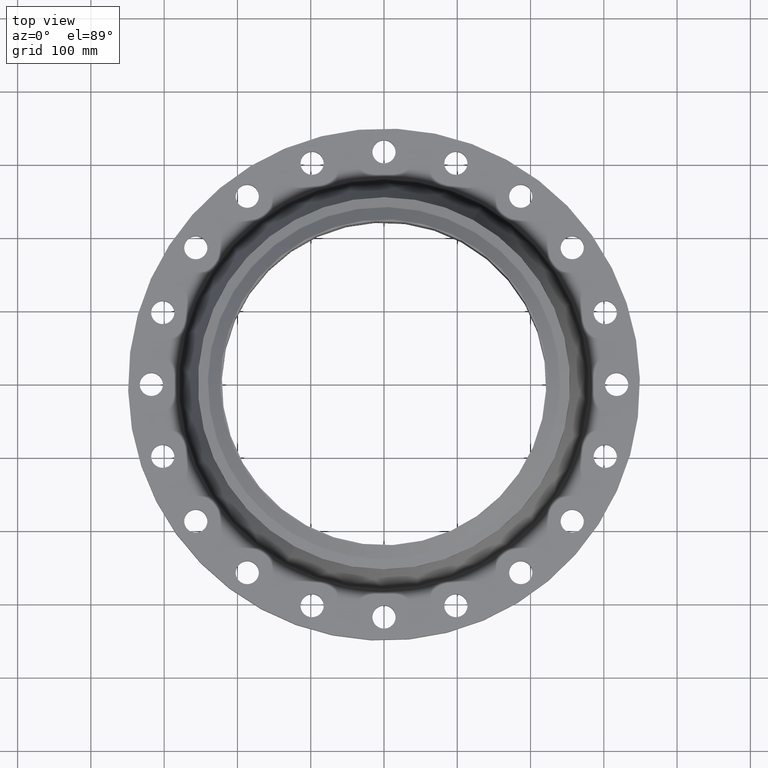
[diagram: clean part render]
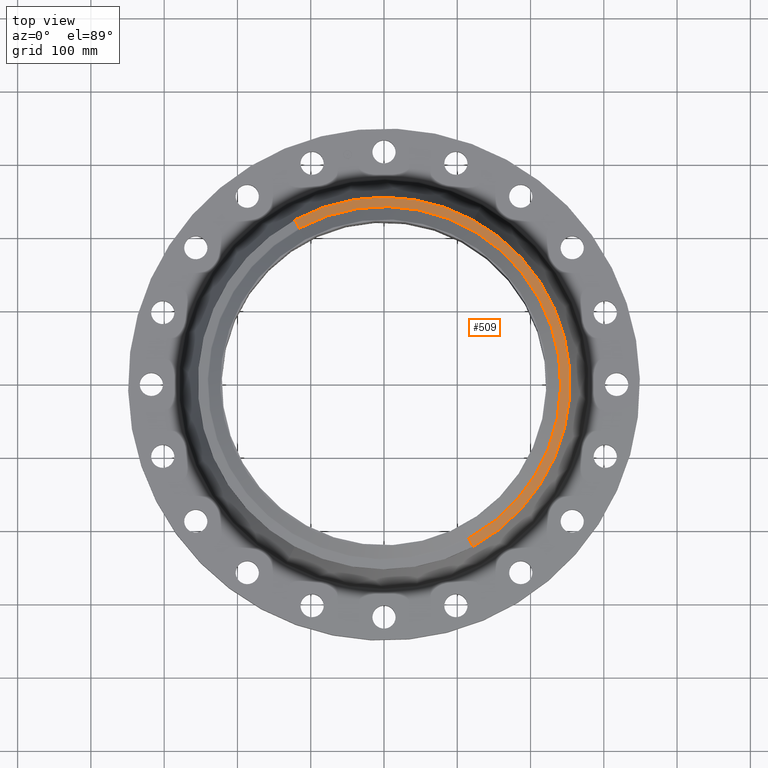
[diagram: same view with one face highlighted and labeled with its STEP entity id]
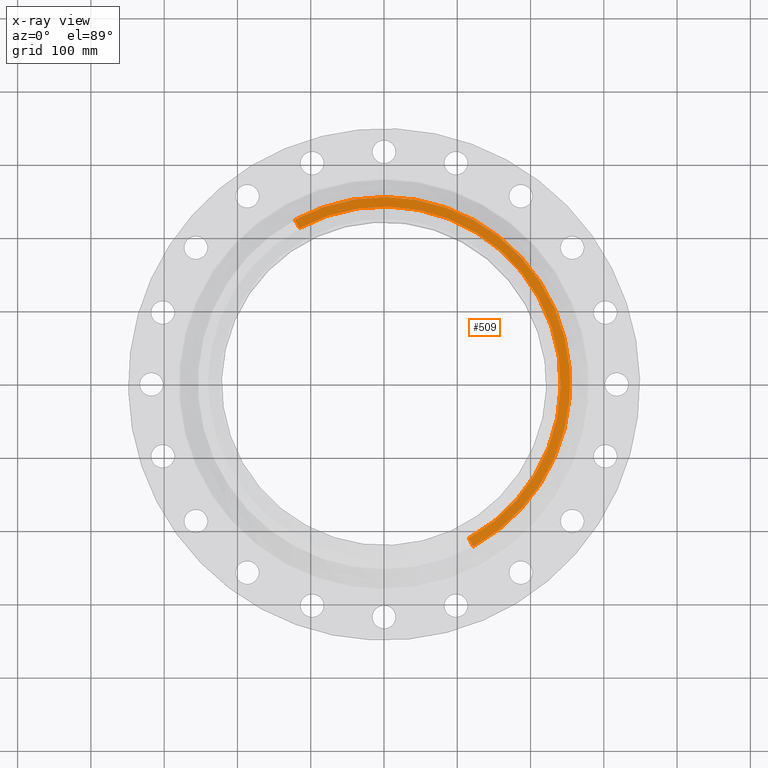
[diagram: x-ray of the same camera — body ghosted, the highlighted face saturated]
A machine part, top view. The second image highlights one B-rep face of the part: STEP entity #509.
The next image is the same camera in x-ray: the body ghosted, the highlighted face saturated — about 0% of this face is hidden behind the body in this view.
In plain terms, the highlighted conical surface has half-angle 80 deg.
Its self-contained STEP definition (entity closure, byte-faithful):
#270=AXIS2_PLACEMENT_3D('Circle Axis2P3D',#268,#269,$) ;
#297=AXIS2_PLACEMENT_3D('Circle Axis2P3D',#295,#296,$) ;
#311=AXIS2_PLACEMENT_3D('Cone Axis2P3D',#308,#309,#310) ;
#480=AXIS2_PLACEMENT_3D('Circle Axis2P3D',#478,#479,$) ;
#265=CARTESIAN_POINT('Vertex',(4.79425538606,8.77582561894,5.01245796599)) ;
#268=CARTESIAN_POINT('Axis2P3D Location',(0.,0.,5.01245796599)) ;
#272=CARTESIAN_POINT('Vertex',(4.79425538606,-8.77582561894,5.01245796599)) ;
#292=CARTESIAN_POINT('Vertex',(-4.79425538606,8.77582561894,5.01245796599)) ;
#295=CARTESIAN_POINT('Axis2P3D Location',(0.,0.,5.01245796599)) ;
#308=CARTESIAN_POINT('Axis2P3D Location',(0.,0.,5.10141601924)) ;
#313=CARTESIAN_POINT('Line Origine',(4.67331881011,-8.55445270155,5.05693699262)) ;
#317=CARTESIAN_POINT('Vertex',(4.55238223415,-8.33307978416,5.10141601924)) ;
#324=CARTESIAN_POINT('Vertex',(-4.55238223415,8.33307978416,5.10141601924)) ;
#327=CARTESIAN_POINT('Line Origine',(-4.67331881011,8.55445270155,5.05693699262)) ;
#478=CARTESIAN_POINT('Axis2P3D Location',(0.,0.,5.10141601924)) ;
#269=DIRECTION('Axis2P3D Direction',(0.,0.,-0.0393700787402)) ;
#296=DIRECTION('Axis2P3D Direction',(0.,0.,-0.0393700787402)) ;
#309=DIRECTION('Axis2P3D Direction',(-0.,-0.,-0.0393700787402)) ;
#310=DIRECTION('Axis2P3D XDirection',(-0.0188750212049,0.0345504945626,0.)) ;
#314=DIRECTION('Vector Direction',(0.0185882672208,-0.0340255949157,-0.00683654242783)) ;
#328=DIRECTION('Vector Direction',(-0.0185882672208,0.0340255949157,-0.00683654242783)) ;
#479=DIRECTION('Axis2P3D Direction',(0.,0.,0.0393700787402)) ;
#315=VECTOR('Line Direction',#314,0.0393700787402) ;
#329=VECTOR('Line Direction',#328,0.0393700787402) ;
#503=ORIENTED_EDGE('',*,*,#331,.F.) ;
#504=ORIENTED_EDGE('',*,*,#482,.F.) ;
#505=ORIENTED_EDGE('',*,*,#319,.T.) ;
#506=ORIENTED_EDGE('',*,*,#274,.T.) ;
#507=ORIENTED_EDGE('',*,*,#299,.F.) ;
#509=ADVANCED_FACE('PartBody',(#508),#312,.T.) ;
#271=CIRCLE('generated circle',#270,10.) ;
#298=CIRCLE('generated circle',#297,10.) ;
#481=CIRCLE('generated circle',#480,9.49549380996) ;
#312=CONICAL_SURFACE('Cone',#311,9.49549380996,1.3962634016) ;
#274=EDGE_CURVE('',#273,#266,#271,.F.) ;
#299=EDGE_CURVE('',#293,#266,#298,.T.) ;
#319=EDGE_CURVE('',#318,#273,#316,.T.) ;
#331=EDGE_CURVE('',#325,#293,#330,.T.) ;
#482=EDGE_CURVE('',#318,#325,#481,.T.) ;
#502=EDGE_LOOP('',(#503,#504,#505,#506,#507)) ;
#508=FACE_OUTER_BOUND('',#502,.T.) ;
#316=LINE('Line',#313,#315) ;
#330=LINE('Line',#327,#329) ;
#266=VERTEX_POINT('',#265) ;
#273=VERTEX_POINT('',#272) ;
#293=VERTEX_POINT('',#292) ;
#318=VERTEX_POINT('',#317) ;
#325=VERTEX_POINT('',#324) ;